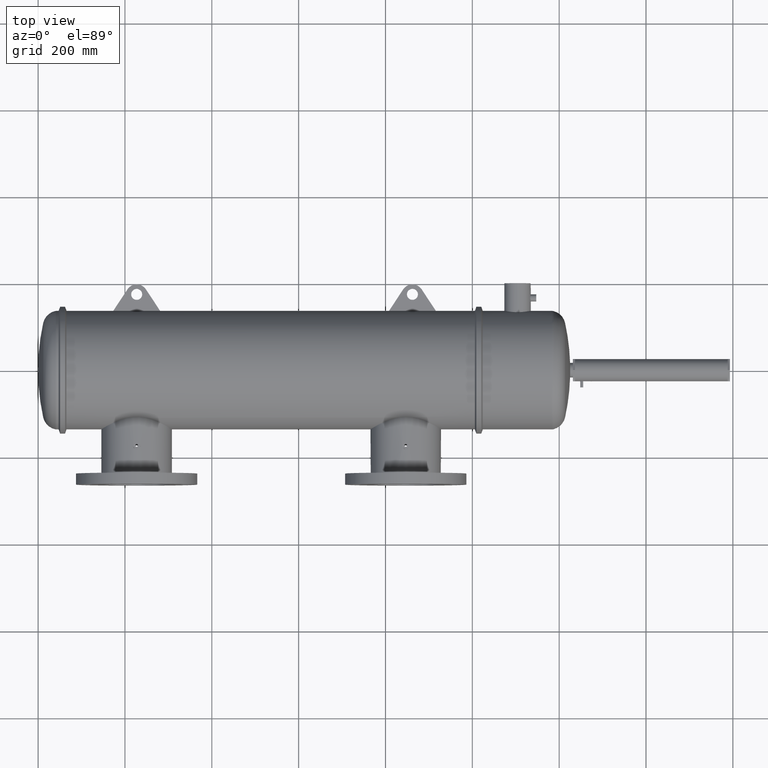
[diagram: clean part render]
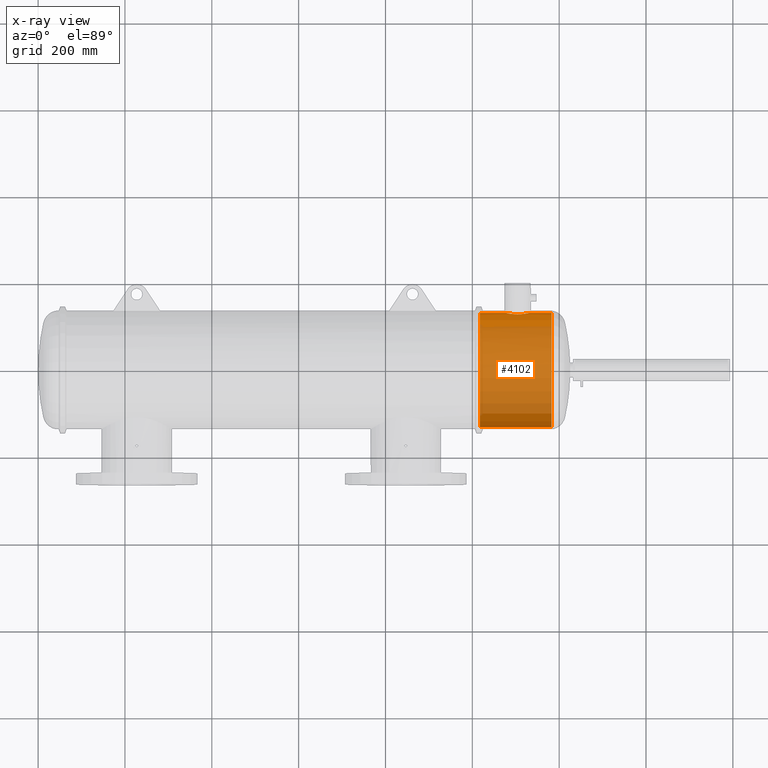
[diagram: x-ray — body ghosted, one internal face saturated and labeled with its STEP entity id]
A machine part, top view, then the same camera in x-ray: the body is ghosted and one INTERNAL B-rep face — a face not visible from any outside direction — is saturated and labeled: STEP entity #4102.
In plain terms, the highlighted cylindrical surface (partial cylindrical patch) has radius 131.525 mm, axis along (-1, 0, -0).
Its self-contained STEP definition (entity closure, byte-faithful):
#12 = DIRECTION ( 'NONE',  ( -1.000000000000000000, 8.273921759108280900E-016, -0.0000000000000000000 ) ) ;
#280 = CARTESIAN_POINT ( 'NONE',  ( 43.74351097966934500, 5.088095559802995100, -0.9615758491163141100 ) ) ;
#299 = CARTESIAN_POINT ( 'NONE',  ( 44.40457285259582000, 5.166182382840864800, -0.3532661619902350300 ) ) ;
#363 = FACE_OUTER_BOUND ( 'NONE', #402, .T. ) ;
#373 = CARTESIAN_POINT ( 'NONE',  ( 43.40273662257776300, 5.081079790152013900, -0.9979727910538169800 ) ) ;
#402 = EDGE_LOOP ( 'NONE', ( #4706, #7405, #3607, #1342, #7203, #3577, #7453 ) ) ;
#498 = VERTEX_POINT ( 'NONE', #6435 ) ;
#573 = DIRECTION ( 'NONE',  ( -8.273921871325341200E-016, -1.000000000000000000, 0.0000000000000000000 ) ) ;
#762 = CARTESIAN_POINT ( 'NONE',  ( 44.44287615446442900, 5.173270859627718800, -0.2271987040639484000 ) ) ;
#764 = AXIS2_PLACEMENT_3D ( 'NONE', #5509, #2007, #2496 ) ;
#820 = CARTESIAN_POINT ( 'NONE',  ( 44.15240472414011200, 5.126456513478397700, -0.7302758677473606400 ) ) ;
#839 = CARTESIAN_POINT ( 'NONE',  ( 43.59903443932813600, 5.081951413055020500, -0.9936097367471428100 ) ) ;
#858 = CARTESIAN_POINT ( 'NONE',  ( 43.45209227254290600, 5.080681139367660700, -0.9999999999999994400 ) ) ;
#869 = CARTESIAN_POINT ( 'NONE',  ( 44.46201582880102900, 5.176898616070191700, -0.1309983948447906200 ) ) ;
#1097 = CARTESIAN_POINT ( 'NONE',  ( 5.449043687918921900E-006, -5.178157431407096400, 0.0000000000000000000 ) ) ;
#1220 = EDGE_CURVE ( 'NONE', #2826, #498, #6591, .T. ) ;
#1342 = ORIENTED_EDGE ( 'NONE', *, *, #3157, .T. ) ;
#1353 = CARTESIAN_POINT ( 'NONE',  ( 43.72754764307983100, 5.087256789193783200, -0.9659999400748088300 ) ) ;
#1405 = CARTESIAN_POINT ( 'NONE',  ( 43.46847904362714100, 5.080681139367659900, -0.9999999999999993300 ) ) ;
#1417 = AXIS2_PLACEMENT_3D ( 'NONE', #4021, #12, #573 ) ;
#1426 = CARTESIAN_POINT ( 'NONE',  ( 43.91183081514203900, 5.099634994570500600, -0.8987146314952652000 ) ) ;
#1441 = CARTESIAN_POINT ( 'NONE',  ( 42.80864771565160300, 5.123286899078184600, -0.7521256798687995200 ) ) ;
#1467 = CARTESIAN_POINT ( 'NONE',  ( 42.67354683667662800, 5.142368955531731300, -0.6101908237028768100 ) ) ;
#1502 = CARTESIAN_POINT ( 'NONE',  ( 43.20847356015771400, 5.086927178804268500, -0.9678133142954519200 ) ) ;
#1580 = VECTOR ( 'NONE', #1964, 39.37007874015748100 ) ;
#1590 = EDGE_CURVE ( 'NONE', #4211, #5232, #2583, .T. ) ;
#1596 = VERTEX_POINT ( 'NONE', #6135 ) ;
#1629 = CARTESIAN_POINT ( 'NONE',  ( 43.46847904362714100, 5.080681139367659900, -0.9999999999999993300 ) ) ;
#1895 = CARTESIAN_POINT ( 'NONE',  ( 44.41570954716461700, 5.168218020510577700, -0.3222506655257441600 ) ) ;
#1954 = CARTESIAN_POINT ( 'NONE',  ( 43.67947729095330800, 5.085035166183909700, -0.9776240603597934300 ) ) ;
#1964 = DIRECTION ( 'NONE',  ( -1.000000000000000000, 8.273921759108280900E-016, -0.0000000000000000000 ) ) ;
#1986 = CARTESIAN_POINT ( 'NONE',  ( 42.48139073071826000, 5.175676216752620500, -0.1635164671627560900 ) ) ;
#2007 = DIRECTION ( 'NONE',  ( -1.000000000000000000, 8.273921759108280900E-016, -0.0000000000000000000 ) ) ;
#2022 = CARTESIAN_POINT ( 'NONE',  ( 42.47650634493949400, 5.176612866536979500, -0.1306455922729542200 ) ) ;
#2042 = CARTESIAN_POINT ( 'NONE',  ( 42.78414347783564200, 5.126510635438353200, -0.7299011878663951300 ) ) ;
#2458 = CIRCLE ( 'NONE', #764, 5.178157746037745900 ) ;
#2487 = CARTESIAN_POINT ( 'NONE',  ( 44.36696787288642000, 5.159456818816122900, -0.4438380620039960000 ) ) ;
#2489 = LINE ( 'NONE', #5331, #1580 ) ;
#2496 = DIRECTION ( 'NONE',  ( 0.0000000000000000000, 1.000000000000000000, 0.0000000000000000000 ) ) ;
#2530 = CARTESIAN_POINT ( 'NONE',  ( 44.26185624084657600, 5.142212191013080700, -0.6096095743583871400 ) ) ;
#2580 = CARTESIAN_POINT ( 'NONE',  ( 42.93945214056884700, 5.108078720149065600, -0.8492281111743276200 ) ) ;
#2583 = B_SPLINE_CURVE_WITH_KNOTS ( 'NONE', 3,
 ( #4227, #3083, #869, #762, #4821, #1895, #299, #2487, #3665, #6597, #2530, #6075, #6619, #820, #5447, #3712, #4909, #5471, #2588, #4840, #1426, #6564, #7145, #280, #1353, #4874, #1954, #839, #4895, #1405 ),
 .UNSPECIFIED., .F., .F.,
 ( 4, 2, 2, 2, 2, 2, 2, 2, 2, 2, 2, 2, 2, 2, 4 ),
 ( 0.04315198686039841600, 0.04812915534341615600, 0.05061773958492502700, 0.05310632382643390400, 0.05808349230945165900, 0.06057207655096053000, 0.06306066079246941400, 0.06554924503397828500, 0.06679353715473272700, 0.06803782927548715500, 0.07301499775850545100, 0.07550358200001458500, 0.07674787412076883300, 0.07799216624152308100, 0.08296933472453946200 ),
 .UNSPECIFIED. ) ;
#2588 = CARTESIAN_POINT ( 'NONE',  ( 44.03779072339909100, 5.112460412780092300, -0.8222866217041325800 ) ) ;
#2620 = CARTESIAN_POINT ( 'NONE',  ( 42.55717058413803500, 5.161749020432510300, -0.4130149575838332200 ) ) ;
#2673 = CARTESIAN_POINT ( 'NONE',  ( 43.14599605520328400, 5.090543308197697000, -0.9488672856976009300 ) ) ;
#2710 = LINE ( 'NONE', #1097, #5913 ) ;
#2763 = CARTESIAN_POINT ( 'NONE',  ( 46.55243624143494700, 3.146306108288680600E-007, 0.0000000000000000000 ) ) ;
#2826 = VERTEX_POINT ( 'NONE', #3185 ) ;
#2870 = VERTEX_POINT ( 'NONE', #4863 ) ;
#3083 = CARTESIAN_POINT ( 'NONE',  ( 44.46847904362715600, 5.178158060668359900, -0.06596298046228768500 ) ) ;
#3157 = EDGE_CURVE ( 'NONE', #5232, #1596, #4214, .T. ) ;
#3166 = CARTESIAN_POINT ( 'NONE',  ( 42.50069925980466900, 5.172016904581192300, -0.2602425408791323400 ) ) ;
#3185 = CARTESIAN_POINT ( 'NONE',  ( 46.55243624143494700, 5.178158060668356400, 6.341414309165199200E-016 ) ) ;
#3189 = CARTESIAN_POINT ( 'NONE',  ( 43.43566671283634400, 5.080760417183310700, -0.9995974732647408000 ) ) ;
#3223 = CARTESIAN_POINT ( 'NONE',  ( 42.61917592618504400, 5.151147130996260000, -0.5289108889479513500 ) ) ;
#3260 = CARTESIAN_POINT ( 'NONE',  ( 42.88538700182971300, 5.113960801569476200, -0.8130568982307908600 ) ) ;
#3520 = EDGE_CURVE ( 'NONE', #2870, #4207, #2458, .T. ) ;
#3577 = ORIENTED_EDGE ( 'NONE', *, *, #3520, .T. ) ;
#3607 = ORIENTED_EDGE ( 'NONE', *, *, #1590, .T. ) ;
#3665 = CARTESIAN_POINT ( 'NONE',  ( 44.33624451329365700, 5.154128932845954300, -0.5012786747149931000 ) ) ;
#3712 = CARTESIAN_POINT ( 'NONE',  ( 44.09049438686143000, 5.118600151742539200, -0.7831749012627446900 ) ) ;
#3760 = CARTESIAN_POINT ( 'NONE',  ( 42.46847904362712700, 5.178158060668360800, -0.03263623260956384500 ) ) ;
#3784 = CARTESIAN_POINT ( 'NONE',  ( 43.33695650099305400, 5.082277248421839000, -0.9918617928929591700 ) ) ;
#3803 = CARTESIAN_POINT ( 'NONE',  ( 42.57116996172818800, 5.159287694444499200, -0.4426332170558707800 ) ) ;
#3851 = CARTESIAN_POINT ( 'NONE',  ( 43.02513057239983100, 5.099966686856759200, -0.8964996921558288100 ) ) ;
#3866 = DIRECTION ( 'NONE',  ( -1.000000000000000000, 8.273921759108280900E-016, -0.0000000000000000000 ) ) ;
#4021 = CARTESIAN_POINT ( 'NONE',  ( 5.449043692203289100E-006, 3.146306493459850400E-007, 0.0000000000000000000 ) ) ;
#4053 = CARTESIAN_POINT ( 'NONE',  ( 5.449043696487656300E-006, 5.178158060668396300, 6.341414309165199200E-016 ) ) ;
#4102 = ADVANCED_FACE ( 'NONE', ( #363 ), #6773, .F. ) ;
#4126 = CARTESIAN_POINT ( 'NONE',  ( 44.46847904362714800, 5.178158060668359000, 6.345680887564508400E-016 ) ) ;
#4207 = VERTEX_POINT ( 'NONE', #4677 ) ;
#4211 = VERTEX_POINT ( 'NONE', #4126 ) ;
#4214 = B_SPLINE_CURVE_WITH_KNOTS ( 'NONE', 3,
 ( #7209, #858, #3189, #373, #7252, #3784, #7232, #1502, #2673, #6168, #6758, #3851, #4961, #4929, #2580, #3260, #4344, #1441, #2042, #5517, #1467, #3223, #6658, #3803, #2620, #6087, #3166, #1986, #2022, #7331, #3760, #5496 ),
 .UNSPECIFIED., .F., .F.,
 ( 4, 2, 2, 2, 2, 2, 2, 2, 2, 2, 2, 2, 2, 2, 2, 4 ),
 ( 0.08296933472453946200, 0.08421289432810795400, 0.08545645393167644600, 0.08794357313881279200, 0.09291781155308545500, 0.09416137115665361400, 0.09540493076022177300, 0.09789204996735810500, 0.1003791691744944400, 0.1028662883816307700, 0.1078405267959038800, 0.1103276460030404400, 0.1128147652101770000, 0.1177890036244501300, 0.1202761228315867600, 0.1227632420387233800 ),
 .UNSPECIFIED. ) ;
#4227 = CARTESIAN_POINT ( 'NONE',  ( 44.46847904362714800, 5.178158060668359000, 6.345680887564508400E-016 ) ) ;
#4232 = EDGE_CURVE ( 'NONE', #2826, #4211, #2489, .T. ) ;
#4344 = CARTESIAN_POINT ( 'NONE',  ( 42.85922117022959600, 5.117019290684873500, -0.7936468127568867500 ) ) ;
#4589 = LINE ( 'NONE', #4053, #7220 ) ;
#4677 = CARTESIAN_POINT ( 'NONE',  ( 40.05530189597459400, -5.178157431407130100, 0.0000000000000000000 ) ) ;
#4706 = ORIENTED_EDGE ( 'NONE', *, *, #1220, .F. ) ;
#4757 = EDGE_CURVE ( 'NONE', #1596, #2870, #4589, .T. ) ;
#4821 = CARTESIAN_POINT ( 'NONE',  ( 44.43491073447739100, 5.171771659307304400, -0.2590384241458644800 ) ) ;
#4840 = CARTESIAN_POINT ( 'NONE',  ( 43.96934530040653000, 5.105019592513173200, -0.8680266264081573100 ) ) ;
#4863 = CARTESIAN_POINT ( 'NONE',  ( 40.05530189597459400, 5.178158060668361700, 6.341414309165202200E-016 ) ) ;
#4874 = CARTESIAN_POINT ( 'NONE',  ( 43.69552706258164700, 5.085726683761542700, -0.9740234188846518300 ) ) ;
#4895 = CARTESIAN_POINT ( 'NONE',  ( 43.53406473838985100, 5.080681139367660700, -0.9999999999999992200 ) ) ;
#4909 = CARTESIAN_POINT ( 'NONE',  ( 44.07761089868483900, 5.117049096620701400, -0.7932384603506450500 ) ) ;
#4929 = CARTESIAN_POINT ( 'NONE',  ( 42.96735146834724600, 5.105254993488328500, -0.8659891848628334900 ) ) ;
#4961 = CARTESIAN_POINT ( 'NONE',  ( 43.01052049509726100, 5.101258824707595200, -0.8891234428242916800 ) ) ;
#5020 = DIRECTION ( 'NONE',  ( 0.0000000000000000000, -1.000000000000000000, 0.0000000000000000000 ) ) ;
#5232 = VERTEX_POINT ( 'NONE', #1629 ) ;
#5331 = CARTESIAN_POINT ( 'NONE',  ( 5.449043696487656300E-006, 5.178158060668396300, 6.341414309165199200E-016 ) ) ;
#5447 = CARTESIAN_POINT ( 'NONE',  ( 44.12830847305300400, 5.123287030054389600, -0.7521231128018229800 ) ) ;
#5471 = CARTESIAN_POINT ( 'NONE',  ( 44.05127646617717800, 5.113981098340223900, -0.8127828960396043000 ) ) ;
#5496 = CARTESIAN_POINT ( 'NONE',  ( 42.46847904362714100, 5.178158060668360800, 6.341543946137178500E-016 ) ) ;
#5509 = CARTESIAN_POINT ( 'NONE',  ( 40.05530189597459400, 3.146306162045461400E-007, 0.0000000000000000000 ) ) ;
#5517 = CARTESIAN_POINT ( 'NONE',  ( 42.71475882104179800, 5.136079836634359600, -0.6604464162138810000 ) ) ;
#5670 = AXIS2_PLACEMENT_3D ( 'NONE', #2763, #3866, #5020 ) ;
#5747 = DIRECTION ( 'NONE',  ( -1.000000000000000000, 8.273921759108280900E-016, -0.0000000000000000000 ) ) ;
#5913 = VECTOR ( 'NONE', #5747, 39.37007874015748100 ) ;
#6075 = CARTESIAN_POINT ( 'NONE',  ( 44.22029676451789700, 5.135964244603887800, -0.6601827964827528000 ) ) ;
#6087 = CARTESIAN_POINT ( 'NONE',  ( 42.51969541568135500, 5.168453063582699500, -0.3225949184961629000 ) ) ;
#6135 = CARTESIAN_POINT ( 'NONE',  ( 42.46847904362714100, 5.178158060668360800, 6.341543946137178500E-016 ) ) ;
#6168 = CARTESIAN_POINT ( 'NONE',  ( 43.06990060675458700, 5.096268763577654700, -0.9172822656580912300 ) ) ;
#6435 = CARTESIAN_POINT ( 'NONE',  ( 46.55243624143494700, -5.178157431407135500, 0.0000000000000000000 ) ) ;
#6564 = CARTESIAN_POINT ( 'NONE',  ( 43.82151803037917400, 5.092843629242794100, -0.9361760888718226900 ) ) ;
#6591 = CIRCLE ( 'NONE', #5670, 5.178157746037745900 ) ;
#6597 = CARTESIAN_POINT ( 'NONE',  ( 44.28159526377358900, 5.145304236197685700, -0.5830234279616395300 ) ) ;
#6619 = CARTESIAN_POINT ( 'NONE',  ( 44.19839884794223700, 5.132795044889278700, -0.6843056763960997400 ) ) ;
#6658 = CARTESIAN_POINT ( 'NONE',  ( 42.60228528314868200, 5.153967166458464500, -0.5007954898037276800 ) ) ;
#6758 = CARTESIAN_POINT ( 'NONE',  ( 43.05479983910190400, 5.097473180193953900, -0.9105707444885698900 ) ) ;
#6773 = CYLINDRICAL_SURFACE ( 'NONE', #1417, 5.178157746037745900 ) ;
#6977 = DIRECTION ( 'NONE',  ( -1.000000000000000000, 8.273921759108280900E-016, -0.0000000000000000000 ) ) ;
#7145 = CARTESIAN_POINT ( 'NONE',  ( 43.79073537502587500, 5.090793852674078600, -0.9472241417219806600 ) ) ;
#7191 = EDGE_CURVE ( 'NONE', #498, #4207, #2710, .T. ) ;
#7203 = ORIENTED_EDGE ( 'NONE', *, *, #4757, .T. ) ;
#7209 = CARTESIAN_POINT ( 'NONE',  ( 43.46847904362714100, 5.080681139367659900, -0.9999999999999993300 ) ) ;
#7220 = VECTOR ( 'NONE', #6977, 39.37007874015748100 ) ;
#7232 = CARTESIAN_POINT ( 'NONE',  ( 43.30453993040926300, 5.083224663652112300, -0.9870108068545997400 ) ) ;
#7252 = CARTESIAN_POINT ( 'NONE',  ( 43.38619208479556700, 5.081320963720093800, -0.9967451305432549800 ) ) ;
#7331 = CARTESIAN_POINT ( 'NONE',  ( 42.47007281315412500, 5.177849547532266800, -0.06529245495939844900 ) ) ;
#7405 = ORIENTED_EDGE ( 'NONE', *, *, #4232, .T. ) ;
#7453 = ORIENTED_EDGE ( 'NONE', *, *, #7191, .F. ) ;